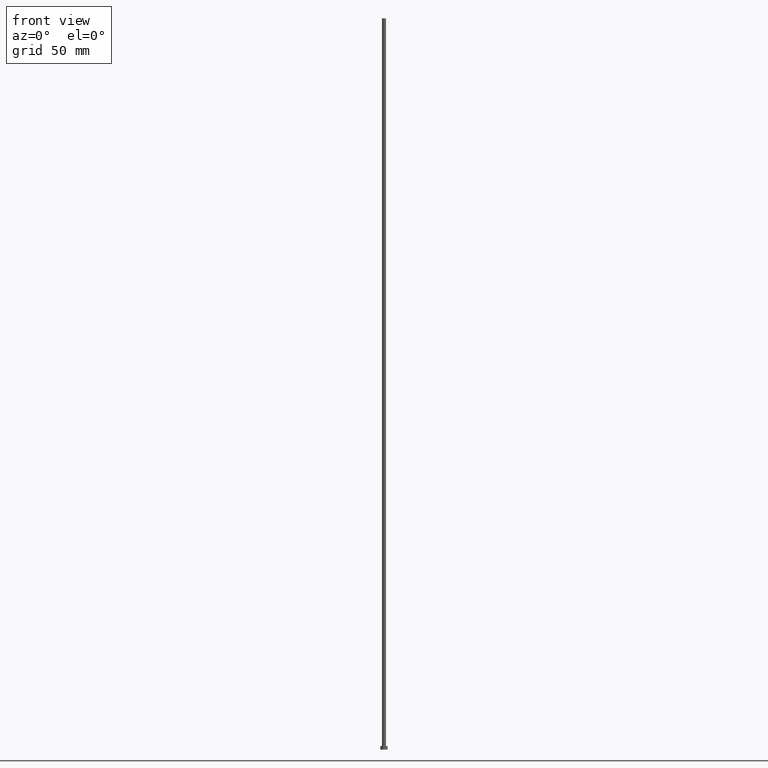
[diagram: clean part render]
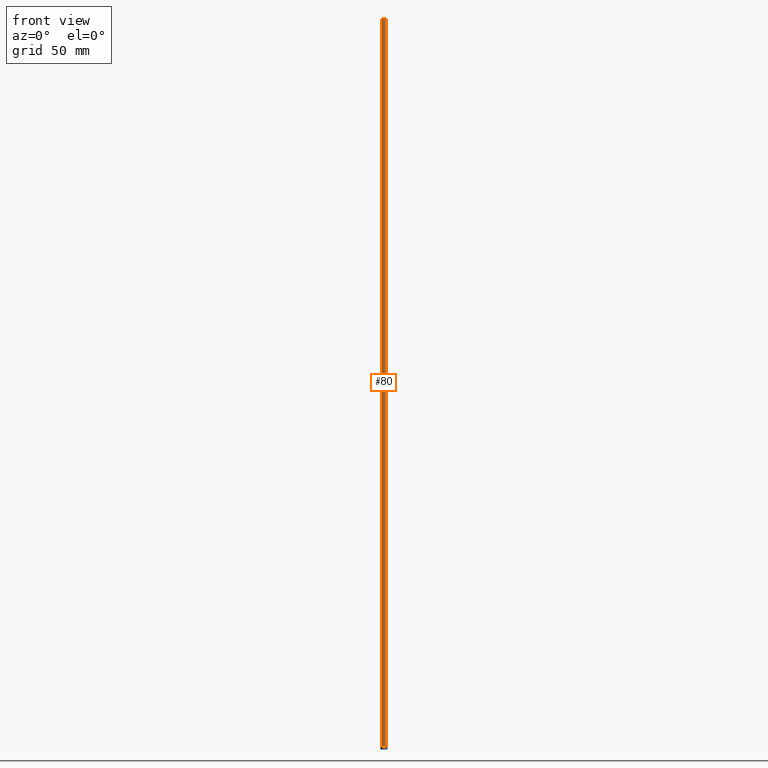
[diagram: same view with one face highlighted and labeled with its STEP entity id]
A machine part, front view. The second image highlights one B-rep face of the part: STEP entity #80.
In plain terms, the highlighted cylindrical surface (edge-blend (fillet) strip) has radius 1.1 mm, axis along (-0, -0, -1).
Its self-contained STEP definition (entity closure, byte-faithful):
#1 = CARTESIAN_POINT ( 'NONE',  ( 0.000000000000000000, 0.000000000000000000, 400.0000000000000000 ) ) ;
#4 = LINE ( 'NONE', #27, #39 ) ;
#22 = CIRCLE ( 'NONE', #198, 1.100000000000000089 ) ;
#23 = CARTESIAN_POINT ( 'NONE',  ( 0.000000000000000000, 0.000000000000000000, 2.000000000000000000 ) ) ;
#24 = CARTESIAN_POINT ( 'NONE',  ( 0.000000000000000000, 0.000000000000000000, 400.0000000000000000 ) ) ;
#27 = CARTESIAN_POINT ( 'NONE',  ( -1.100000000000000089, 0.000000000000000000, 400.0000000000000000 ) ) ;
#37 = DIRECTION ( 'NONE',  ( 1.000000000000000000, 0.000000000000000000, 0.000000000000000000 ) ) ;
#39 = VECTOR ( 'NONE', #157, 1000.000000000000000 ) ;
#41 = DIRECTION ( 'NONE',  ( -0.000000000000000000, -0.000000000000000000, -1.000000000000000000 ) ) ;
#52 = CIRCLE ( 'NONE', #210, 1.100000000000000089 ) ;
#62 = CARTESIAN_POINT ( 'NONE',  ( -1.100000000000000089, 0.000000000000000000, 2.000000000000000000 ) ) ;
#77 = VERTEX_POINT ( 'NONE', #62 ) ;
#78 = CARTESIAN_POINT ( 'NONE',  ( 1.100000000000000089, 1.347111479062088503E-16, 2.000000000000000000 ) ) ;
#80 = ADVANCED_FACE ( 'NONE', ( #82 ), #179, .T. ) ;
#82 = FACE_OUTER_BOUND ( 'NONE', #110, .T. ) ;
#102 = LINE ( 'NONE', #178, #231 ) ;
#109 = ORIENTED_EDGE ( 'NONE', *, *, #197, .F. ) ;
#110 = EDGE_LOOP ( 'NONE', ( #109, #255, #211, #111 ) ) ;
#111 = ORIENTED_EDGE ( 'NONE', *, *, #223, .T. ) ;
#114 = AXIS2_PLACEMENT_3D ( 'NONE', #1, #41, #220 ) ;
#140 = CARTESIAN_POINT ( 'NONE',  ( -1.100000000000000089, 0.000000000000000000, 400.0000000000000000 ) ) ;
#151 = VERTEX_POINT ( 'NONE', #140 ) ;
#152 = VERTEX_POINT ( 'NONE', #218 ) ;
#157 = DIRECTION ( 'NONE',  ( -0.000000000000000000, -0.000000000000000000, -1.000000000000000000 ) ) ;
#172 = EDGE_CURVE ( 'NONE', #151, #152, #52, .T. ) ;
#176 = DIRECTION ( 'NONE',  ( 1.000000000000000000, 0.000000000000000000, 0.000000000000000000 ) ) ;
#178 = CARTESIAN_POINT ( 'NONE',  ( 1.100000000000000089, 1.347111479062088503E-16, 400.0000000000000000 ) ) ;
#179 = CYLINDRICAL_SURFACE ( 'NONE', #114, 1.100000000000000089 ) ;
#189 = EDGE_CURVE ( 'NONE', #151, #77, #4, .T. ) ;
#197 = EDGE_CURVE ( 'NONE', #152, #235, #102, .T. ) ;
#198 = AXIS2_PLACEMENT_3D ( 'NONE', #23, #214, #37 ) ;
#199 = DIRECTION ( 'NONE',  ( 0.000000000000000000, 0.000000000000000000, 1.000000000000000000 ) ) ;
#201 = DIRECTION ( 'NONE',  ( -0.000000000000000000, -0.000000000000000000, -1.000000000000000000 ) ) ;
#210 = AXIS2_PLACEMENT_3D ( 'NONE', #24, #199, #176 ) ;
#211 = ORIENTED_EDGE ( 'NONE', *, *, #189, .T. ) ;
#214 = DIRECTION ( 'NONE',  ( 0.000000000000000000, 0.000000000000000000, 1.000000000000000000 ) ) ;
#218 = CARTESIAN_POINT ( 'NONE',  ( 1.100000000000000089, 1.347111479062088503E-16, 400.0000000000000000 ) ) ;
#220 = DIRECTION ( 'NONE',  ( -1.000000000000000000, 0.000000000000000000, 0.000000000000000000 ) ) ;
#223 = EDGE_CURVE ( 'NONE', #77, #235, #22, .T. ) ;
#231 = VECTOR ( 'NONE', #201, 1000.000000000000000 ) ;
#235 = VERTEX_POINT ( 'NONE', #78 ) ;
#255 = ORIENTED_EDGE ( 'NONE', *, *, #172, .F. ) ;